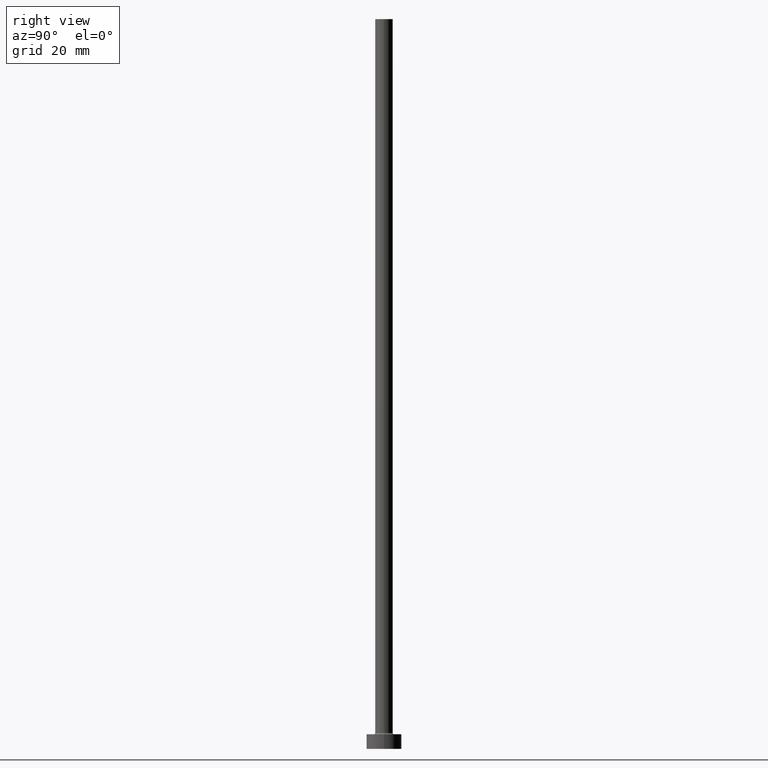
[diagram: clean part render]
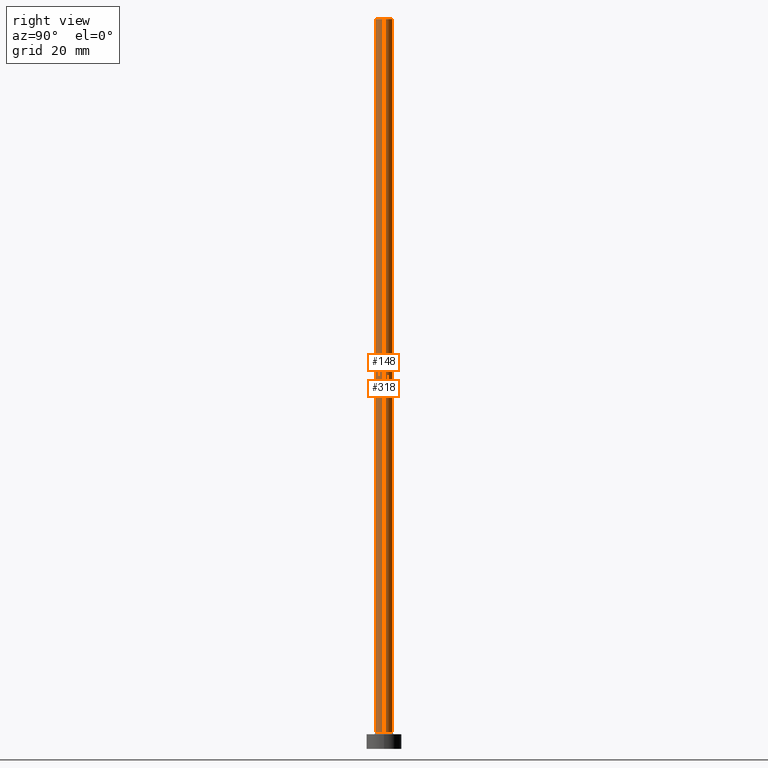
[diagram: same view with one multi-face feature highlighted, each face labeled with its STEP entity id]
A machine part, right view. The highlighted faces form ONE feature: a constant-radius fillet chain: 2 tangent blend faces with common blend radius 3 mm. The faces share edges in the B-rep.
Their STEP definitions:
[1] entity #318 (Cylinder):
#10 = VECTOR ( 'NONE', #75, 1000.000000000000000 ) ;
#17 = EDGE_CURVE ( 'NONE', #24, #392, #147, .T. ) ;
#19 = CARTESIAN_POINT ( 'NONE',  ( 3.000000000000000444, 3.673940397442060361E-16, 250.0000000000000000 ) ) ;
#24 = VERTEX_POINT ( 'NONE', #244 ) ;
#43 = AXIS2_PLACEMENT_3D ( 'NONE', #292, #188, #185 ) ;
#65 = DIRECTION ( 'NONE',  ( 0.000000000000000000, 0.000000000000000000, 1.000000000000000000 ) ) ;
#72 = DIRECTION ( 'NONE',  ( -1.000000000000000000, 0.000000000000000000, 0.000000000000000000 ) ) ;
#75 = DIRECTION ( 'NONE',  ( -0.000000000000000000, -0.000000000000000000, -1.000000000000000000 ) ) ;
#77 = CARTESIAN_POINT ( 'NONE',  ( -3.000000000000000444, 0.000000000000000000, 250.0000000000000000 ) ) ;
#91 = ORIENTED_EDGE ( 'NONE', *, *, #287, .T. ) ;
#99 = AXIS2_PLACEMENT_3D ( 'NONE', #182, #65, #120 ) ;
#109 = CYLINDRICAL_SURFACE ( 'NONE', #231, 3.000000000000000444 ) ;
#120 = DIRECTION ( 'NONE',  ( 1.000000000000000000, 0.000000000000000000, 0.000000000000000000 ) ) ;
#128 = ORIENTED_EDGE ( 'NONE', *, *, #282, .F. ) ;
#137 = CIRCLE ( 'NONE', #43, 3.000000000000000444 ) ;
#147 = LINE ( 'NONE', #19, #406 ) ;
#182 = CARTESIAN_POINT ( 'NONE',  ( 0.000000000000000000, 0.000000000000000000, 5.500000000000005329 ) ) ;
#185 = DIRECTION ( 'NONE',  ( 1.000000000000000000, 0.000000000000000000, 0.000000000000000000 ) ) ;
#188 = DIRECTION ( 'NONE',  ( 0.000000000000000000, 0.000000000000000000, 1.000000000000000000 ) ) ;
#198 = CARTESIAN_POINT ( 'NONE',  ( -3.000000000000000444, 0.000000000000000000, 250.0000000000000000 ) ) ;
#231 = AXIS2_PLACEMENT_3D ( 'NONE', #324, #260, #72 ) ;
#242 = ORIENTED_EDGE ( 'NONE', *, *, #419, .F. ) ;
#244 = CARTESIAN_POINT ( 'NONE',  ( 3.000000000000000444, 3.673940397442060361E-16, 250.0000000000000000 ) ) ;
#260 = DIRECTION ( 'NONE',  ( -0.000000000000000000, -0.000000000000000000, -1.000000000000000000 ) ) ;
#266 = LINE ( 'NONE', #198, #10 ) ;
#282 = EDGE_CURVE ( 'NONE', #24, #338, #137, .T. ) ;
#283 = DIRECTION ( 'NONE',  ( -0.000000000000000000, -0.000000000000000000, -1.000000000000000000 ) ) ;
#285 = FACE_OUTER_BOUND ( 'NONE', #304, .T. ) ;
#287 = EDGE_CURVE ( 'NONE', #392, #417, #311, .T. ) ;
#292 = CARTESIAN_POINT ( 'NONE',  ( 0.000000000000000000, 0.000000000000000000, 250.0000000000000000 ) ) ;
#304 = EDGE_LOOP ( 'NONE', ( #128, #316, #91, #242 ) ) ;
#311 = CIRCLE ( 'NONE', #99, 3.000000000000000444 ) ;
#316 = ORIENTED_EDGE ( 'NONE', *, *, #17, .T. ) ;
#318 = ADVANCED_FACE ( 'NONE', ( #285 ), #109, .T. ) ;
#324 = CARTESIAN_POINT ( 'NONE',  ( 0.000000000000000000, 0.000000000000000000, 250.0000000000000000 ) ) ;
#338 = VERTEX_POINT ( 'NONE', #77 ) ;
#349 = CARTESIAN_POINT ( 'NONE',  ( 3.000000000000000444, 3.673940397442060361E-16, 5.500000000000005329 ) ) ;
#392 = VERTEX_POINT ( 'NONE', #349 ) ;
#406 = VECTOR ( 'NONE', #283, 1000.000000000000000 ) ;
#412 = CARTESIAN_POINT ( 'NONE',  ( -3.000000000000000444, 0.000000000000000000, 5.500000000000005329 ) ) ;
#417 = VERTEX_POINT ( 'NONE', #412 ) ;
#419 = EDGE_CURVE ( 'NONE', #338, #417, #266, .T. ) ;
[2] entity #148 (Cylinder):
#9 = DIRECTION ( 'NONE',  ( 0.000000000000000000, 0.000000000000000000, 1.000000000000000000 ) ) ;
#10 = VECTOR ( 'NONE', #75, 1000.000000000000000 ) ;
#17 = EDGE_CURVE ( 'NONE', #24, #392, #147, .T. ) ;
#19 = CARTESIAN_POINT ( 'NONE',  ( 3.000000000000000444, 3.673940397442060361E-16, 250.0000000000000000 ) ) ;
#24 = VERTEX_POINT ( 'NONE', #244 ) ;
#39 = CARTESIAN_POINT ( 'NONE',  ( 0.000000000000000000, 0.000000000000000000, 250.0000000000000000 ) ) ;
#44 = CARTESIAN_POINT ( 'NONE',  ( 0.000000000000000000, 0.000000000000000000, 5.500000000000005329 ) ) ;
#75 = DIRECTION ( 'NONE',  ( -0.000000000000000000, -0.000000000000000000, -1.000000000000000000 ) ) ;
#77 = CARTESIAN_POINT ( 'NONE',  ( -3.000000000000000444, 0.000000000000000000, 250.0000000000000000 ) ) ;
#98 = AXIS2_PLACEMENT_3D ( 'NONE', #157, #398, #289 ) ;
#142 = ORIENTED_EDGE ( 'NONE', *, *, #354, .T. ) ;
#147 = LINE ( 'NONE', #19, #406 ) ;
#148 = ADVANCED_FACE ( 'NONE', ( #397 ), #369, .T. ) ;
#157 = CARTESIAN_POINT ( 'NONE',  ( 0.000000000000000000, 0.000000000000000000, 250.0000000000000000 ) ) ;
#166 = DIRECTION ( 'NONE',  ( 1.000000000000000000, 0.000000000000000000, 0.000000000000000000 ) ) ;
#181 = EDGE_CURVE ( 'NONE', #338, #24, #379, .T. ) ;
#193 = DIRECTION ( 'NONE',  ( 1.000000000000000000, 0.000000000000000000, 0.000000000000000000 ) ) ;
#198 = CARTESIAN_POINT ( 'NONE',  ( -3.000000000000000444, 0.000000000000000000, 250.0000000000000000 ) ) ;
#203 = ORIENTED_EDGE ( 'NONE', *, *, #419, .T. ) ;
#209 = EDGE_LOOP ( 'NONE', ( #245, #394, #203, #142 ) ) ;
#244 = CARTESIAN_POINT ( 'NONE',  ( 3.000000000000000444, 3.673940397442060361E-16, 250.0000000000000000 ) ) ;
#245 = ORIENTED_EDGE ( 'NONE', *, *, #17, .F. ) ;
#266 = LINE ( 'NONE', #198, #10 ) ;
#277 = AXIS2_PLACEMENT_3D ( 'NONE', #44, #9, #193 ) ;
#283 = DIRECTION ( 'NONE',  ( -0.000000000000000000, -0.000000000000000000, -1.000000000000000000 ) ) ;
#289 = DIRECTION ( 'NONE',  ( -1.000000000000000000, 0.000000000000000000, 0.000000000000000000 ) ) ;
#312 = CIRCLE ( 'NONE', #277, 3.000000000000000444 ) ;
#331 = DIRECTION ( 'NONE',  ( 0.000000000000000000, 0.000000000000000000, 1.000000000000000000 ) ) ;
#338 = VERTEX_POINT ( 'NONE', #77 ) ;
#349 = CARTESIAN_POINT ( 'NONE',  ( 3.000000000000000444, 3.673940397442060361E-16, 5.500000000000005329 ) ) ;
#354 = EDGE_CURVE ( 'NONE', #417, #392, #312, .T. ) ;
#369 = CYLINDRICAL_SURFACE ( 'NONE', #98, 3.000000000000000444 ) ;
#379 = CIRCLE ( 'NONE', #437, 3.000000000000000444 ) ;
#392 = VERTEX_POINT ( 'NONE', #349 ) ;
#394 = ORIENTED_EDGE ( 'NONE', *, *, #181, .F. ) ;
#397 = FACE_OUTER_BOUND ( 'NONE', #209, .T. ) ;
#398 = DIRECTION ( 'NONE',  ( -0.000000000000000000, -0.000000000000000000, -1.000000000000000000 ) ) ;
#406 = VECTOR ( 'NONE', #283, 1000.000000000000000 ) ;
#412 = CARTESIAN_POINT ( 'NONE',  ( -3.000000000000000444, 0.000000000000000000, 5.500000000000005329 ) ) ;
#417 = VERTEX_POINT ( 'NONE', #412 ) ;
#419 = EDGE_CURVE ( 'NONE', #338, #417, #266, .T. ) ;
#437 = AXIS2_PLACEMENT_3D ( 'NONE', #39, #331, #166 ) ;